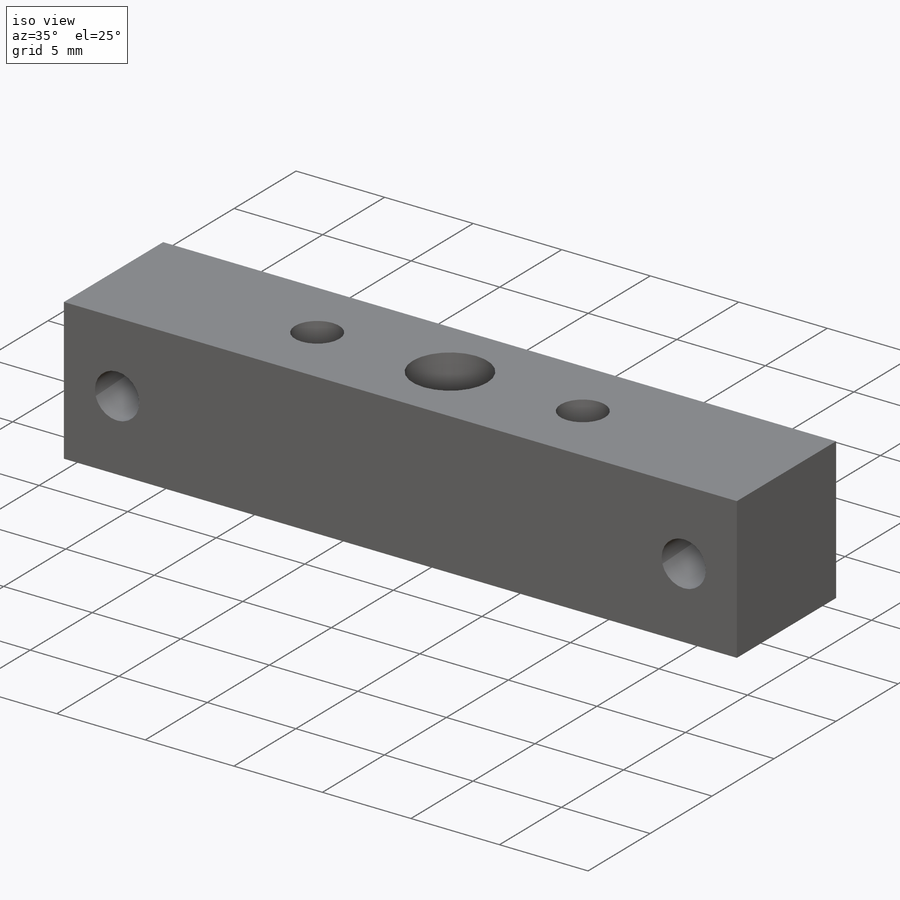
[diagram: iso view]
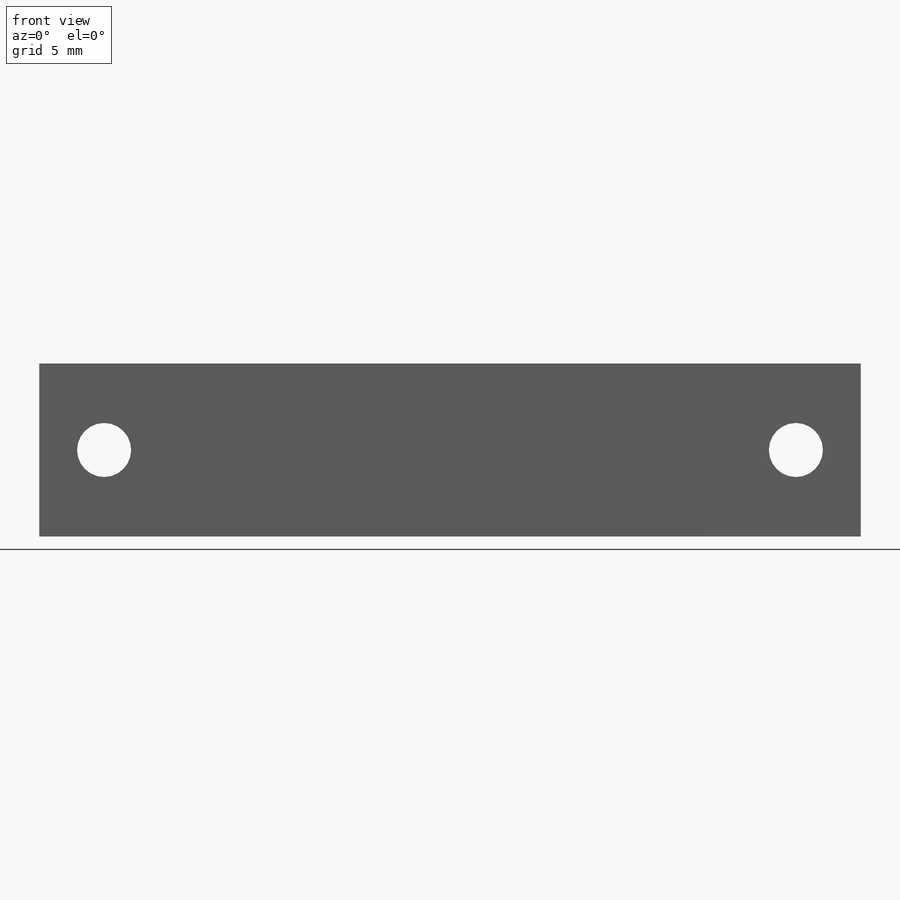
[diagram: front view]
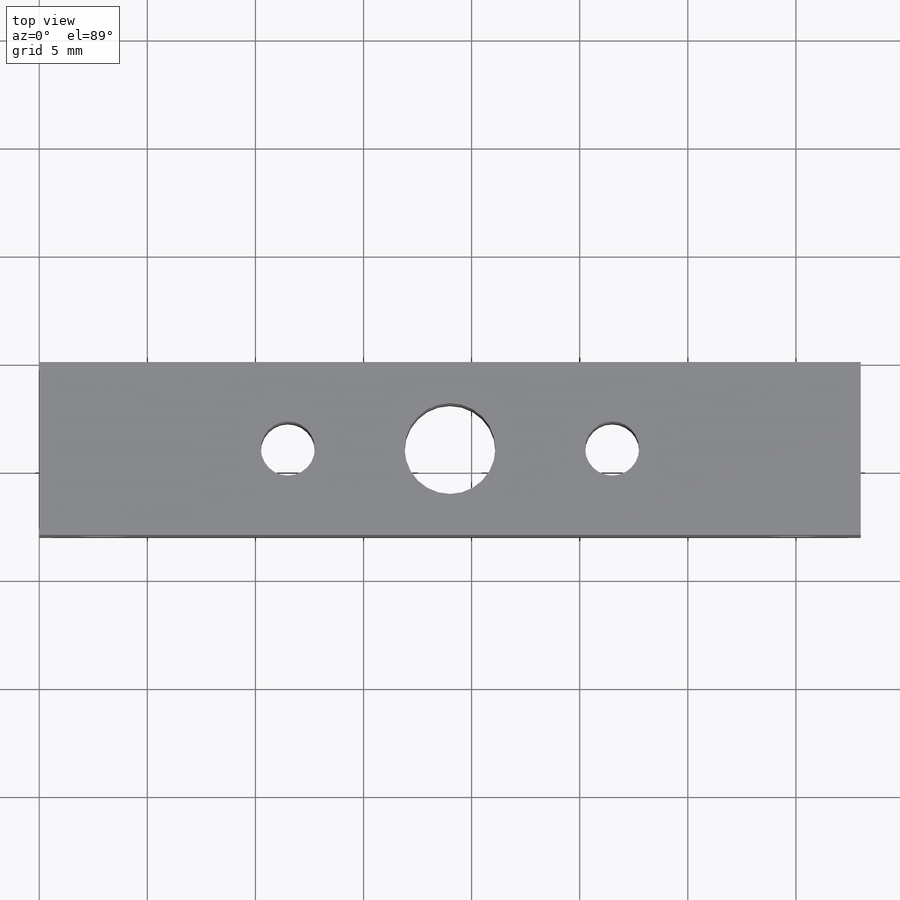
[diagram: top view]
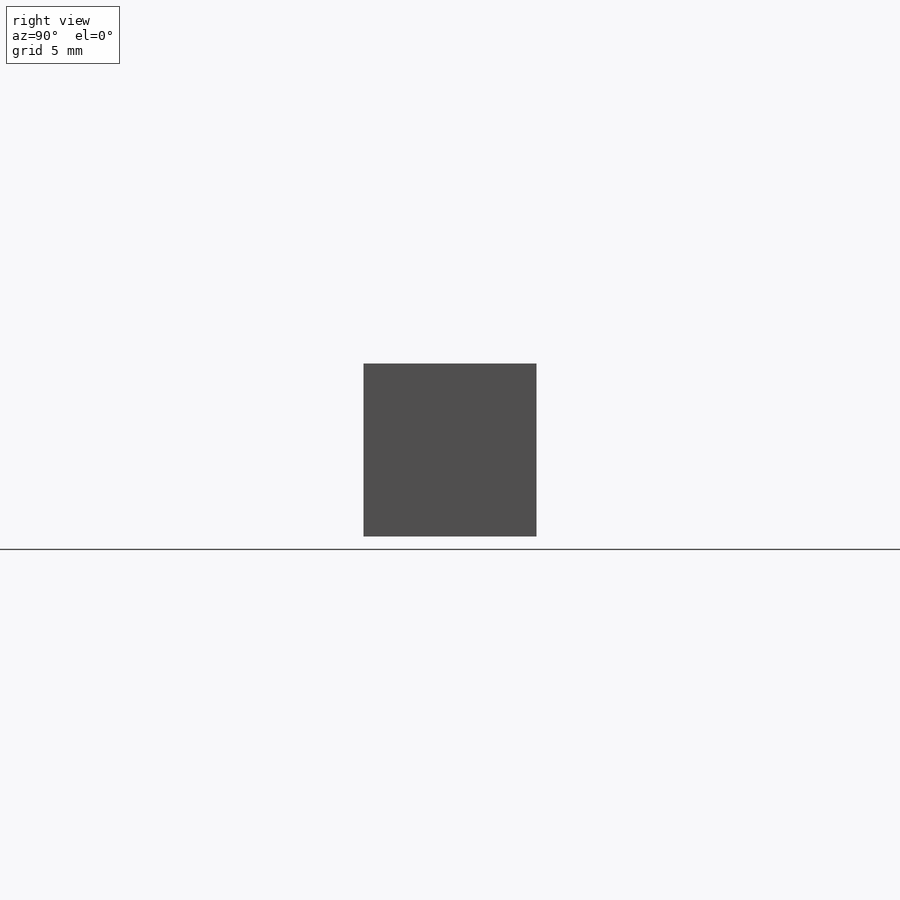
[diagram: right view]
SOLIDWORKS PART (.sldprt)
format: sldprt  version: not decoded by parser v0  size: 218,112 bytes
history: native  units: mm
features: sketch x7, hole x3, material x1, extrude x1, thread x1 (+16 scaffold rows collapsed)
feature tree (29):
  scaffold x16  (default folders/planes/origin — collapsed)
  material  "Material <not specified>"
  sketch  "Sketch1"  dims[D1=8.0mm D2=38.0mm]
  extrude  "Boss-Extrude1"  Depth=8mm
  hole  "Tap Drill for M5x0.8 Tap1"  Diameter=4.2mm Depth=8mm
  sketch  "Sketch3"
  sketch  "Sketch2"  dims[hole-wizard template sketch: 61 standard entries collapsed; hole parameters above]
  thread  "Cosmetic Thread1"  Diameter=5mm  [1 undecoded]
  hole  "Tap Drill for M3x0.5 Tap1"  Diameter=2.5mm Depth=8mm
  sketch  "Sketch5"  dims[D1=32.0mm D2=16.0mm]
  sketch  "Sketch4"  dims[hole-wizard template sketch: 60 standard entries collapsed; hole parameters kept: c18.Thru Hole Depth=8.0mm]
  hole  "Tap Drill for M3x0.5 Tap2"  Diameter=2.5mm Depth=8mm
  sketch  "Sketch8"  dims[D1=7.5mm D2=15.0mm]
  sketch  "Sketch7"  dims[hole-wizard template sketch: 60 standard entries collapsed; hole parameters kept: c18.Thru Hole Depth=8.0mm]
decode coverage: 11 of 12 modeling features carry decoded parameters
note: ~ marks probable driven/reference dimensions
note: 1 parameter value undecoded
note: suppression state not decoded; provenance and decode notes live in map.json
